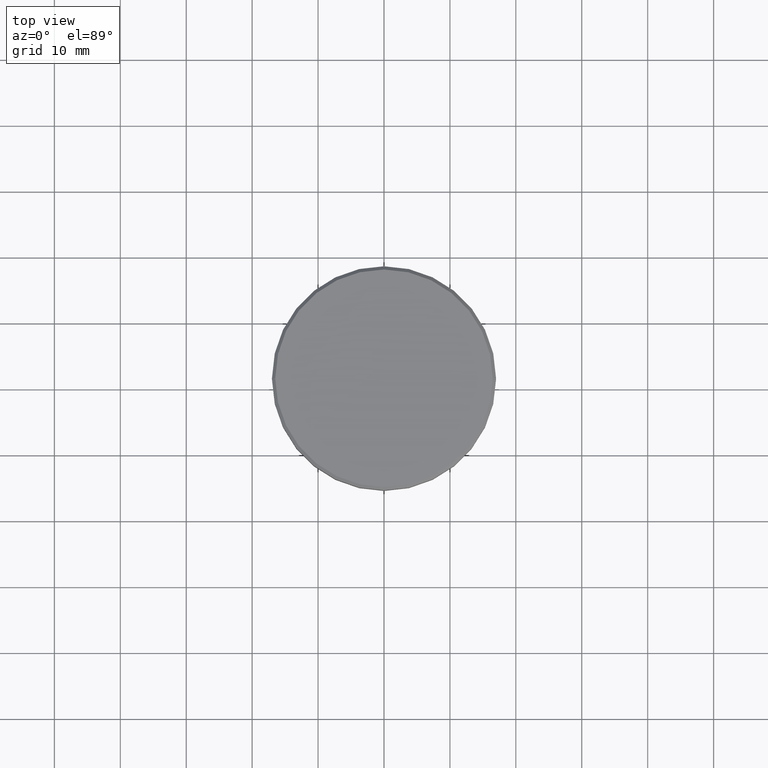
[diagram: clean part render]
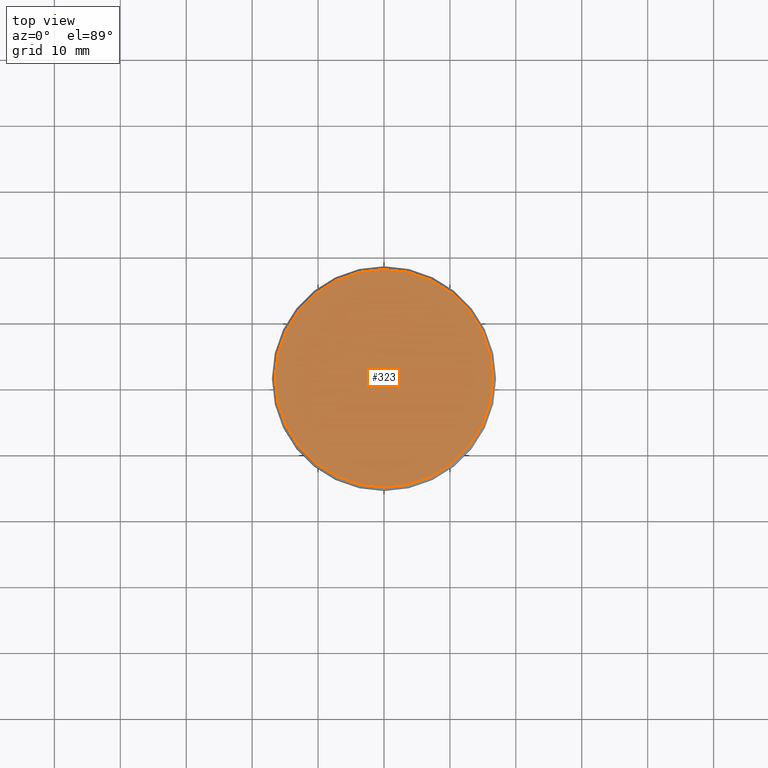
[diagram: same view with one face highlighted and labeled with its STEP entity id]
A machine part, top view. The second image highlights one B-rep face of the part: STEP entity #323.
In plain terms, the highlighted planar face has unit normal (0, -0, 1).
Its self-contained STEP definition (entity closure, byte-faithful):
#27 = DIRECTION ( 'NONE',  ( -0.000000000000000000, -0.000000000000000000, 1.000000000000000000 ) ) ;
#35 = CARTESIAN_POINT ( 'NONE',  ( 16.50000000000000000, 2.051283388571816887E-15, 0.000000000000000000 ) ) ;
#51 = DIRECTION ( 'NONE',  ( 1.000000000000000000, 0.000000000000000000, 0.000000000000000000 ) ) ;
#58 = CARTESIAN_POINT ( 'NONE',  ( -16.50000000000000000, 0.000000000000000000, 0.000000000000000000 ) ) ;
#117 = EDGE_CURVE ( 'NONE', #1177, #1051, #622, .T. ) ;
#145 = PLANE ( 'NONE',  #420 ) ;
#180 = CIRCLE ( 'NONE', #499, 16.50000000000000000 ) ;
#193 = DIRECTION ( 'NONE',  ( -0.000000000000000000, -0.000000000000000000, 1.000000000000000000 ) ) ;
#323 = ADVANCED_FACE ( 'NONE', ( #1032 ), #145, .T. ) ;
#375 = AXIS2_PLACEMENT_3D ( 'NONE', #463, #27, #752 ) ;
#420 = AXIS2_PLACEMENT_3D ( 'NONE', #508, #777, #51 ) ;
#463 = CARTESIAN_POINT ( 'NONE',  ( 0.000000000000000000, 0.000000000000000000, 0.000000000000000000 ) ) ;
#472 = DIRECTION ( 'NONE',  ( 1.000000000000000000, 0.000000000000000000, 0.000000000000000000 ) ) ;
#499 = AXIS2_PLACEMENT_3D ( 'NONE', #801, #193, #472 ) ;
#508 = CARTESIAN_POINT ( 'NONE',  ( 0.000000000000000000, 0.000000000000000000, 0.000000000000000000 ) ) ;
#517 = EDGE_CURVE ( 'NONE', #1051, #1177, #180, .T. ) ;
#622 = CIRCLE ( 'NONE', #375, 16.50000000000000000 ) ;
#752 = DIRECTION ( 'NONE',  ( 1.000000000000000000, 0.000000000000000000, 0.000000000000000000 ) ) ;
#777 = DIRECTION ( 'NONE',  ( 0.000000000000000000, -0.000000000000000000, 1.000000000000000000 ) ) ;
#801 = CARTESIAN_POINT ( 'NONE',  ( 0.000000000000000000, 0.000000000000000000, 0.000000000000000000 ) ) ;
#804 = ORIENTED_EDGE ( 'NONE', *, *, #117, .T. ) ;
#819 = ORIENTED_EDGE ( 'NONE', *, *, #517, .T. ) ;
#900 = EDGE_LOOP ( 'NONE', ( #804, #819 ) ) ;
#1032 = FACE_OUTER_BOUND ( 'NONE', #900, .T. ) ;
#1051 = VERTEX_POINT ( 'NONE', #35 ) ;
#1177 = VERTEX_POINT ( 'NONE', #58 ) ;